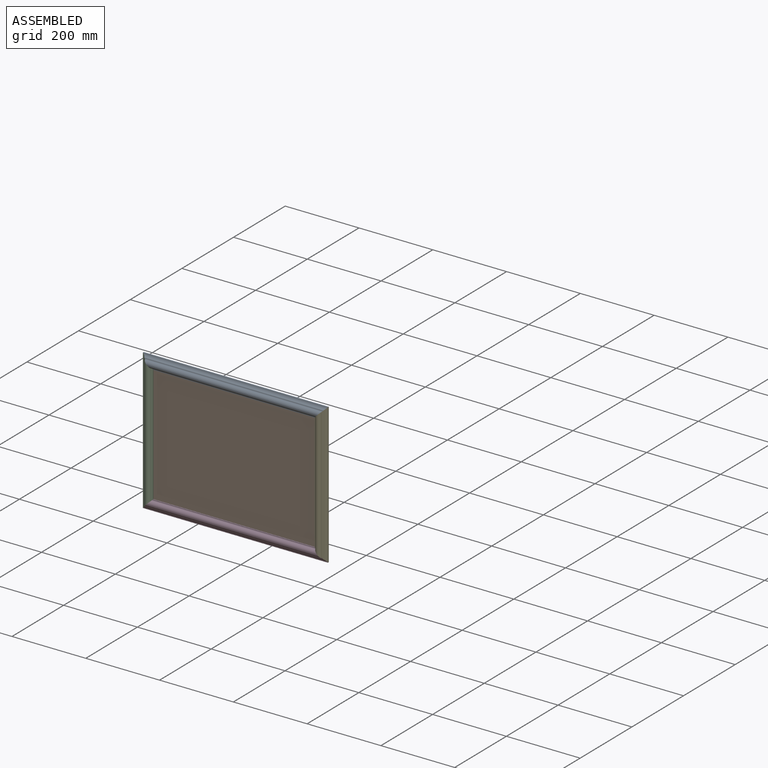
[diagram: assembled view]
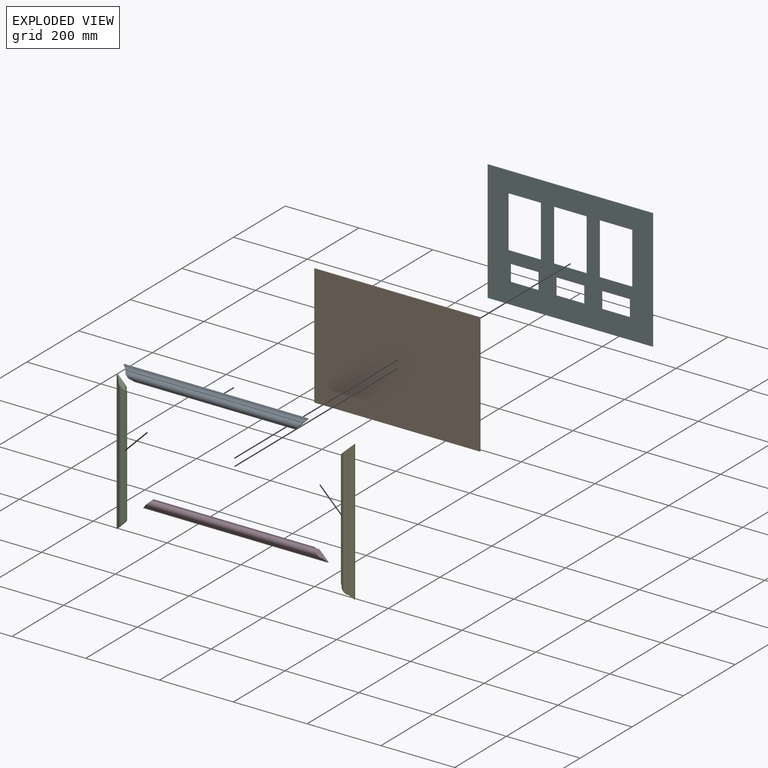
[diagram: exploded view]
GUIDED TOUR — MATED ASSEMBLY (Onshape document 936408cb544bb9868f3a3eb5, AutoMate assembly 936408cb544bb9868f3a3eb5_71fb5be47598a07a367c53dc_f4735473dea0fb01e8b9a4d9_default)

This assembly has 6 components, labeled P0..P5 below (a component is one placed occurrence of a part; the same part can appear more than once), held together by 5 mates. A mate is a constraint between two components; its type names the relative motion it leaves free:
  FASTENED — locks the two components together rigidly (no relative motion).
Axis/direction vectors are unit vectors and 'through' points are millimeter coordinates, both in the assembly's world frame.

MATES
  1. FASTENED "Fastened 2": P4 <-> P0, direction (-0.707, 0.000, 0.707) through (284.64, 303.07, 244.83) mm
  2. FASTENED "Fastened 5": P1 <-> P3, direction (0.000, -1.000, 0.000) through (275.14, 302.78, -93.28) mm
  3. FASTENED "Fastened 3": P4 <-> P3, direction (-0.707, 0.000, -0.707) through (284.64, 303.07, -102.78) mm
  4. FASTENED "Fastened 1": P0 <-> P2, direction (-0.707, 0.000, -0.707) through (-183.62, 303.07, 244.83) mm
  5. FASTENED "Fastened 6": P5 <-> P0, direction (0.000, -1.000, 0.000) through (-173.33, 304.78, 234.54) mm

ASSEMBLY ORDER
  1. P3 — the base component [order verified]
  2. P0 [order verified]
  3. P4 [order verified]
  4. P2 [order verified]
  5. P1 [order verified]
  6. P5 [order verified]
Order-tag legend:
  [order verified] — this step's position reverses a verified removal order: the component was checked to insert without passing through the ones already placed.

Of the 6 components, 2 carry the full construction recipe — the FeatureScript program that regenerates the part's solid from scratch; the rest are supplied as boundary geometry only.
Each toured component is shown spotlighted twice — in the assembled view, then in the exploded view, where a leader line traces a displaced component back to its assembled socket (saturated green if recipe-attached, orange if geometry-only; every other component desaturated gray) — followed by its recipe or geometry summary and the mates that hold it.
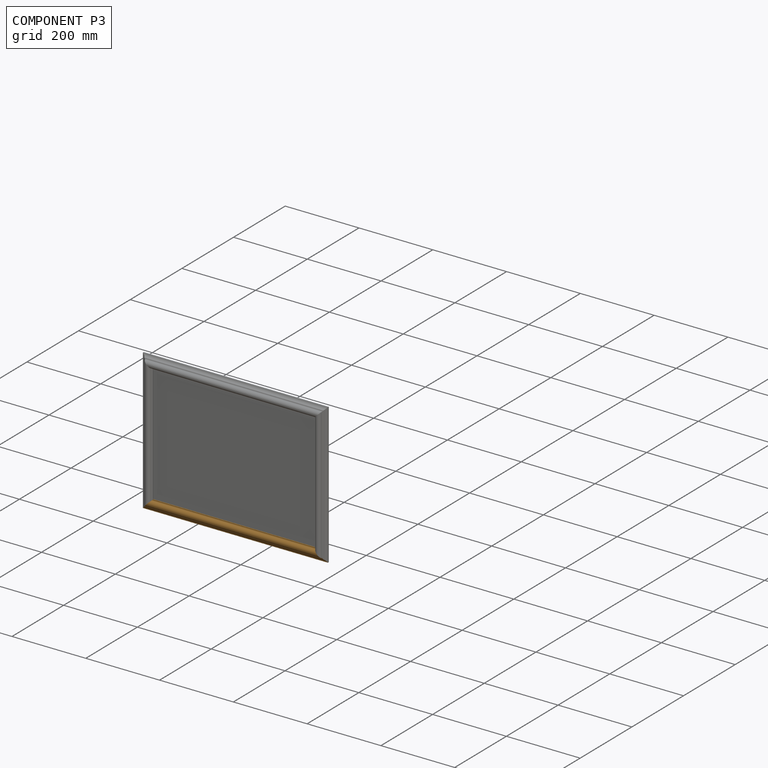
[diagram: component P3 — assembled]
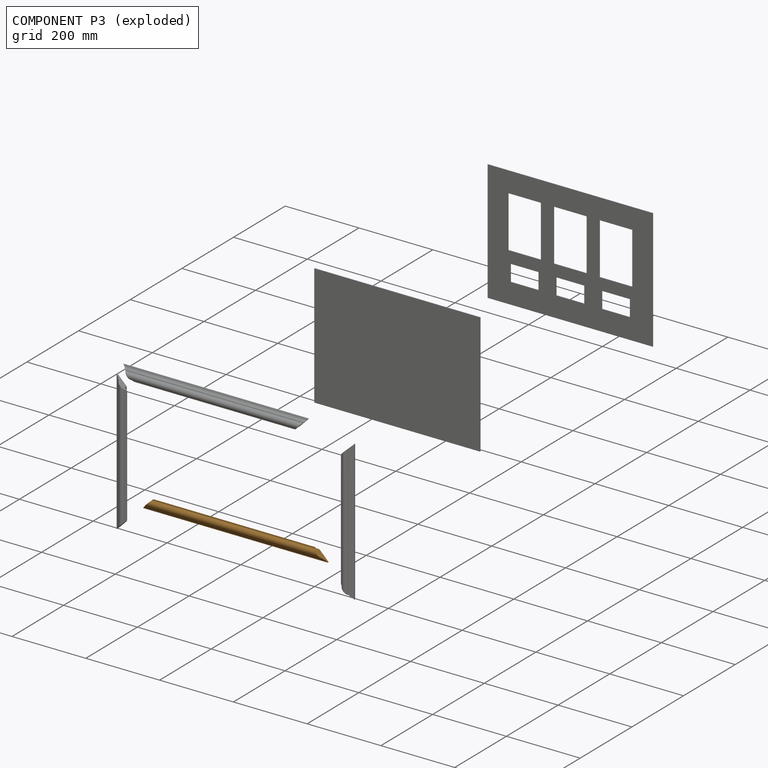
[diagram: component P3 — exploded]
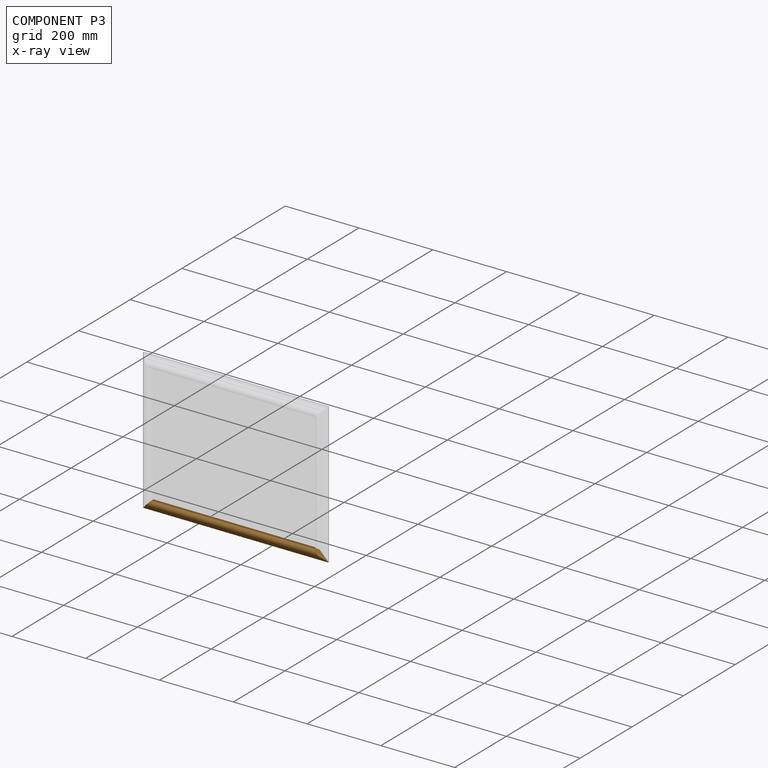
[diagram: component P3 — x-ray view]
COMPONENT P3 — geometry summary (no construction recipe available for this part):
  bounding box: 501.7 x 31.8 x 17.5 mm
  B-rep topology: 1 solid, 13 faces, 66 edges
  volume: 152653 mm^3 (55% of its bounding box)
  symmetry: mirror-symmetric across its z mid-plane
Held by: FASTENED mate "Fastened 5" to P1; FASTENED mate "Fastened 3" to P4.
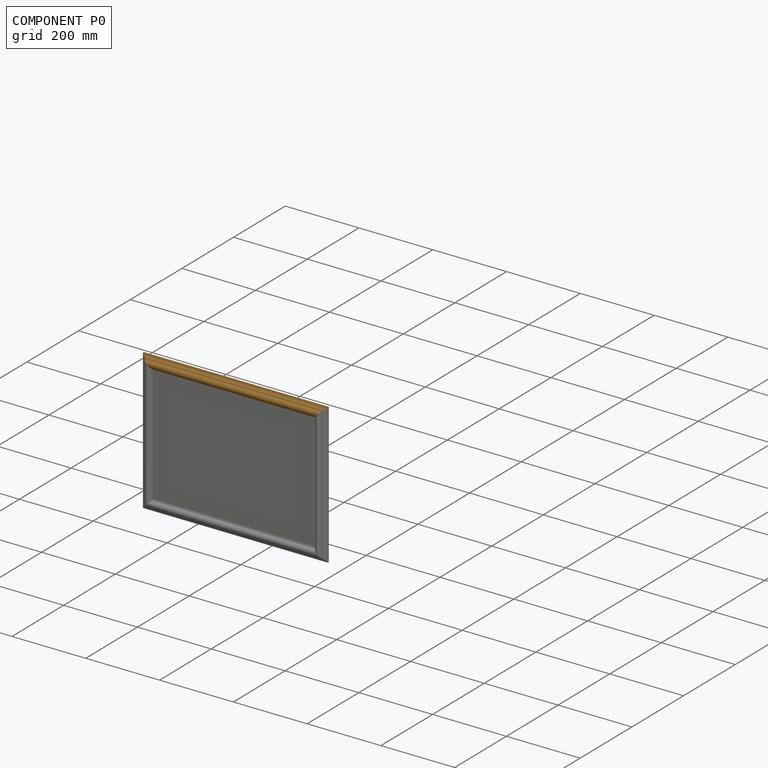
[diagram: component P0 — assembled]
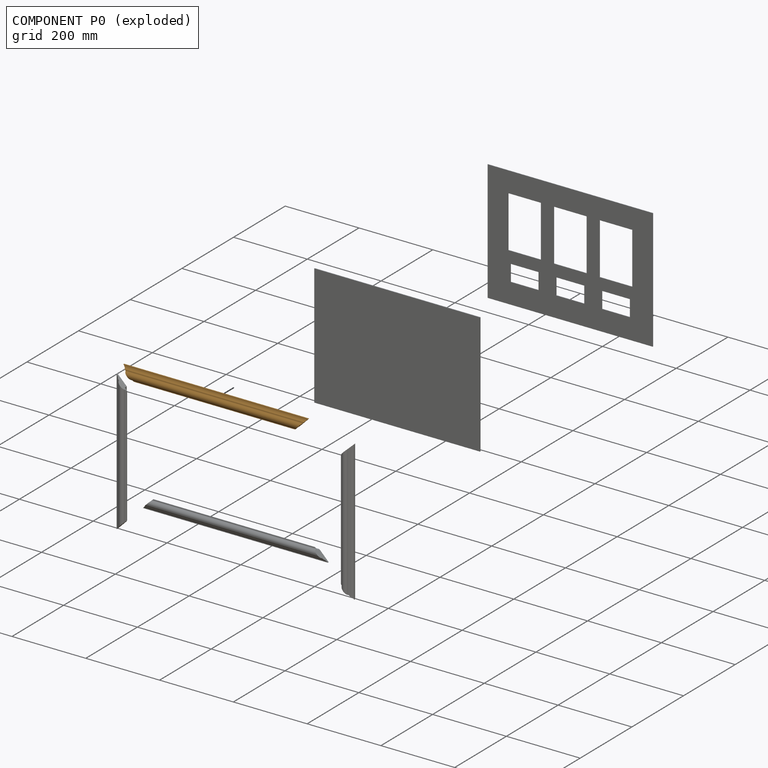
[diagram: component P0 — exploded]
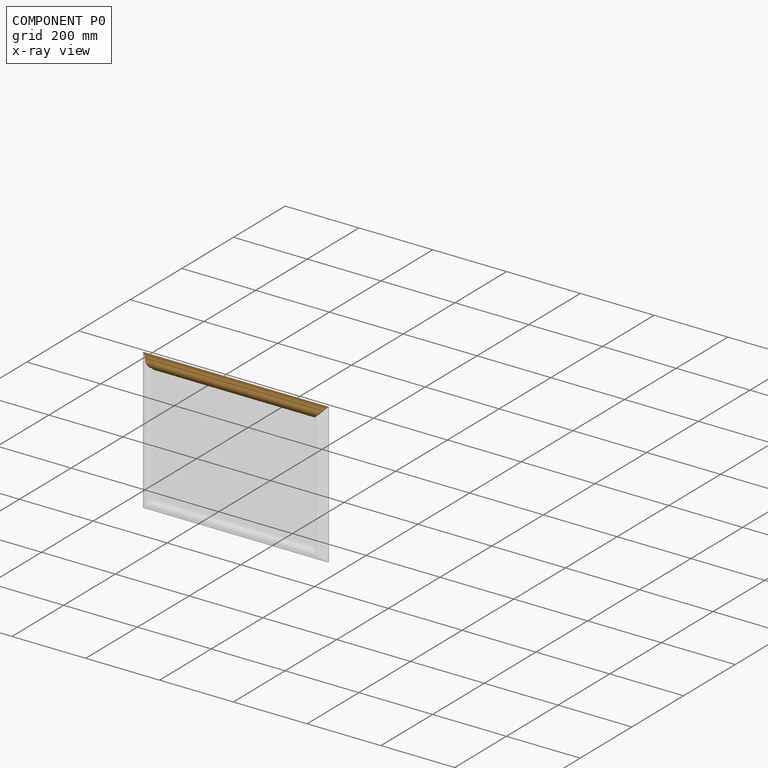
[diagram: component P0 — x-ray view]
COMPONENT P0 — geometry summary (no construction recipe available for this part):
  bounding box: 501.7 x 31.8 x 17.5 mm
  B-rep topology: 1 solid, 13 faces, 66 edges
  volume: 152653 mm^3 (55% of its bounding box)
  symmetry: mirror-symmetric across its z mid-plane
Held by: FASTENED mate "Fastened 2" to P4; FASTENED mate "Fastened 1" to P2; FASTENED mate "Fastened 6" to P5.
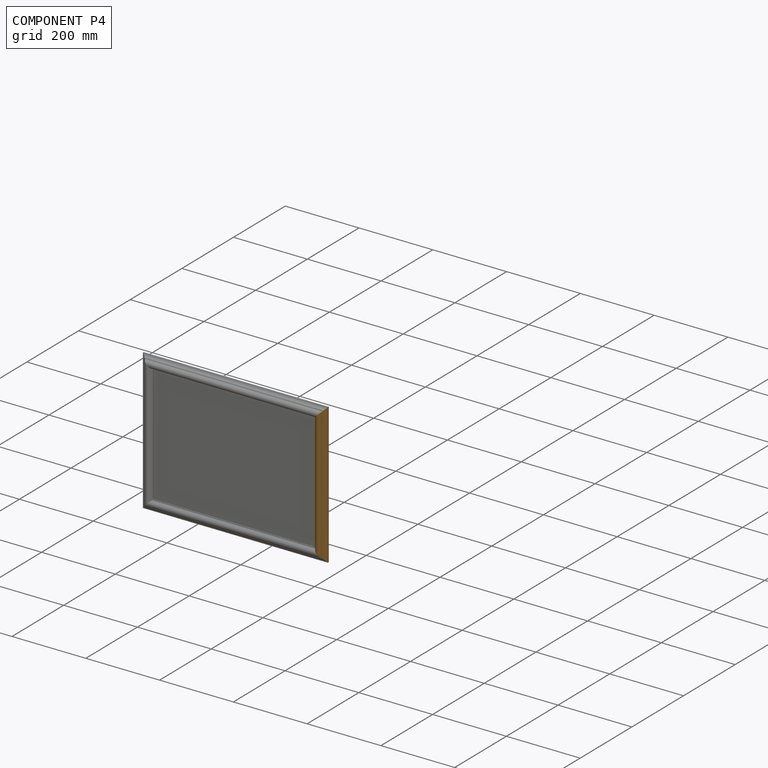
[diagram: component P4 — assembled]
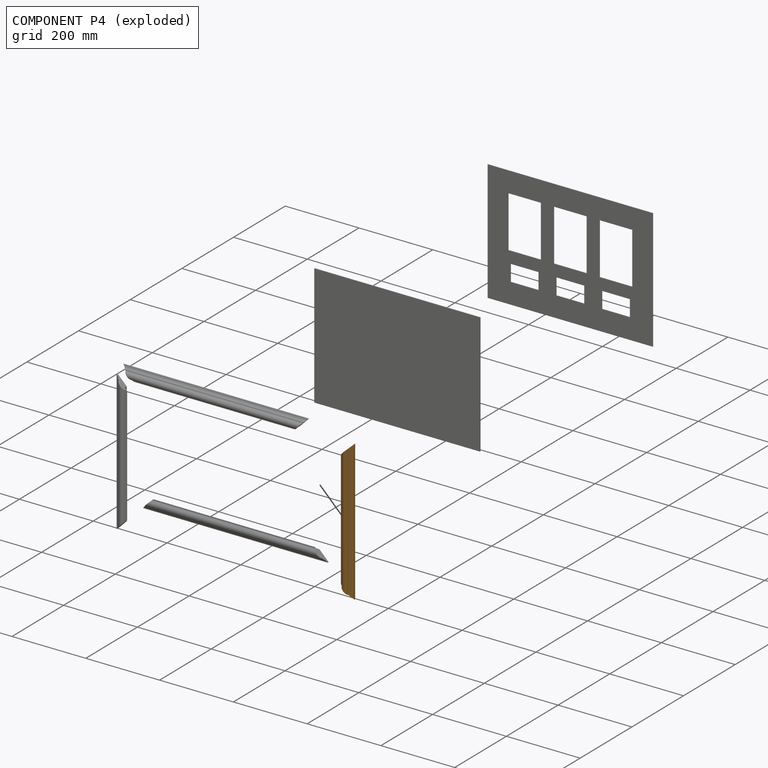
[diagram: component P4 — exploded]
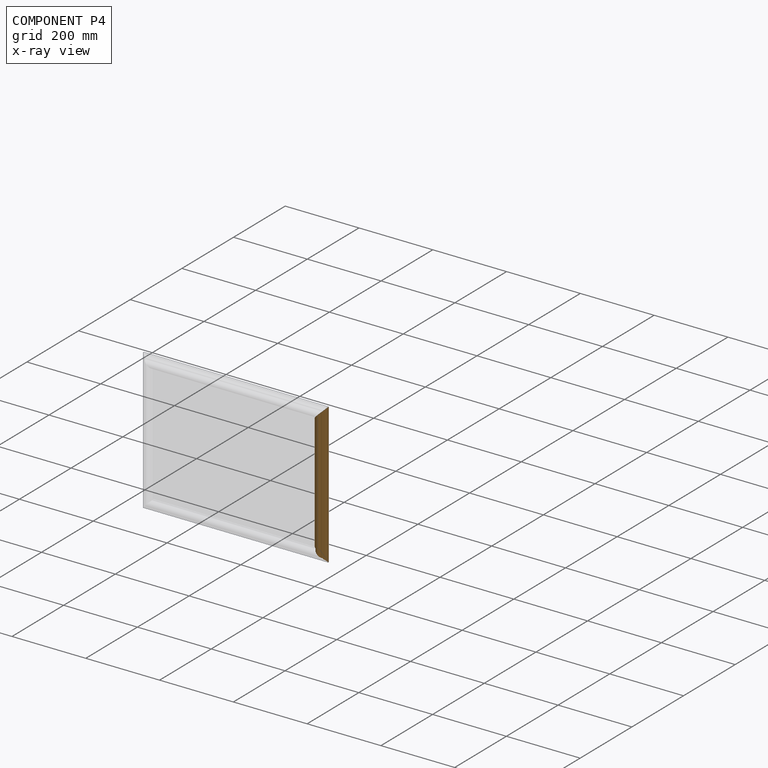
[diagram: component P4 — x-ray view]
COMPONENT P4 — geometry summary (no construction recipe available for this part):
  bounding box: 381.0 x 31.8 x 17.5 mm
  B-rep topology: 1 solid, 13 faces, 66 edges
  volume: 113321 mm^3 (54% of its bounding box)
  symmetry: mirror-symmetric across its z mid-plane
Held by: FASTENED mate "Fastened 2" to P0; FASTENED mate "Fastened 3" to P3.
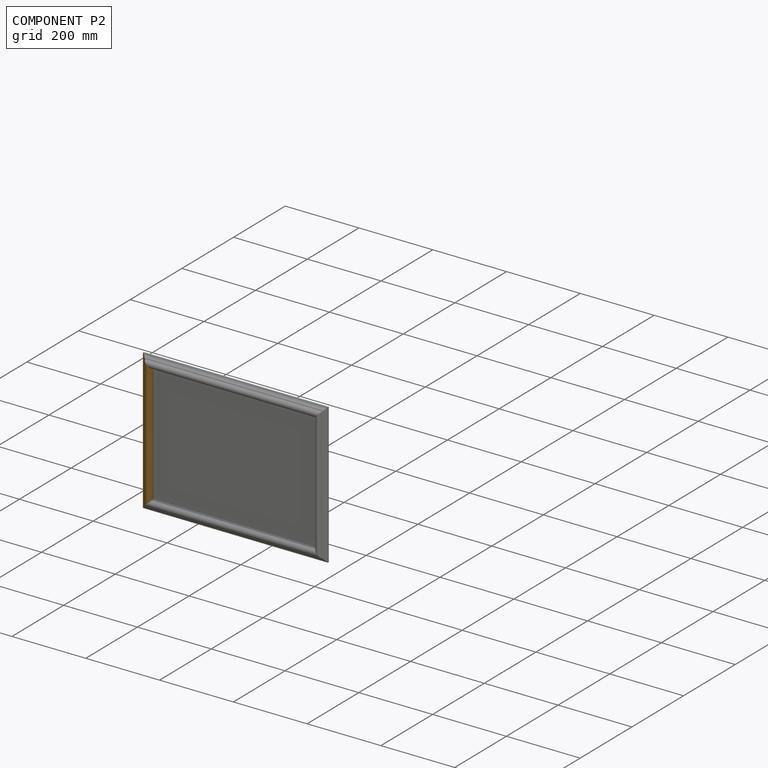
[diagram: component P2 — assembled]
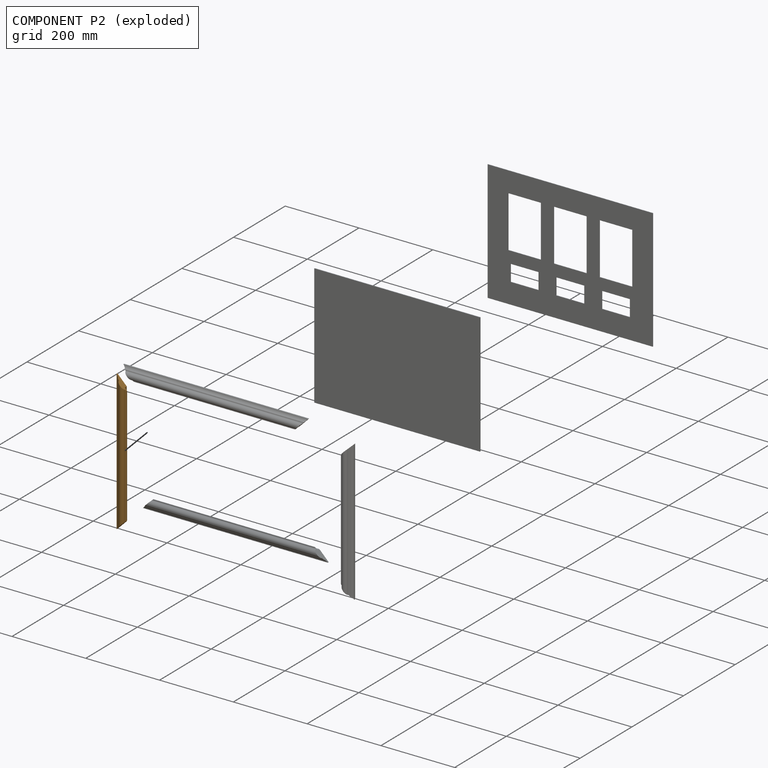
[diagram: component P2 — exploded]
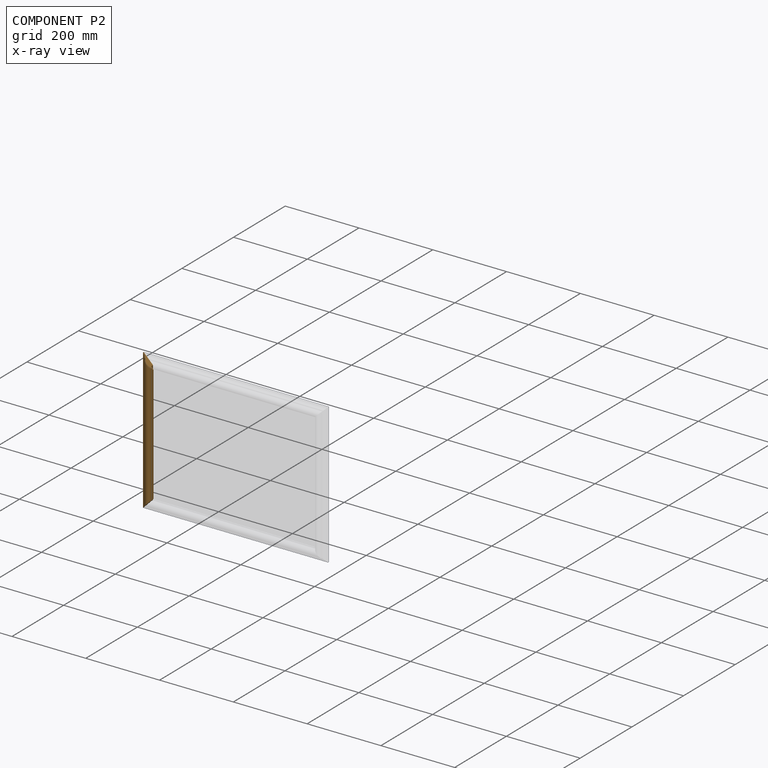
[diagram: component P2 — x-ray view]
COMPONENT P2 — geometry summary (no construction recipe available for this part):
  bounding box: 381.0 x 31.8 x 17.5 mm
  B-rep topology: 1 solid, 13 faces, 66 edges
  volume: 113321 mm^3 (54% of its bounding box)
  symmetry: mirror-symmetric across its z mid-plane
Held by: FASTENED mate "Fastened 1" to P0.
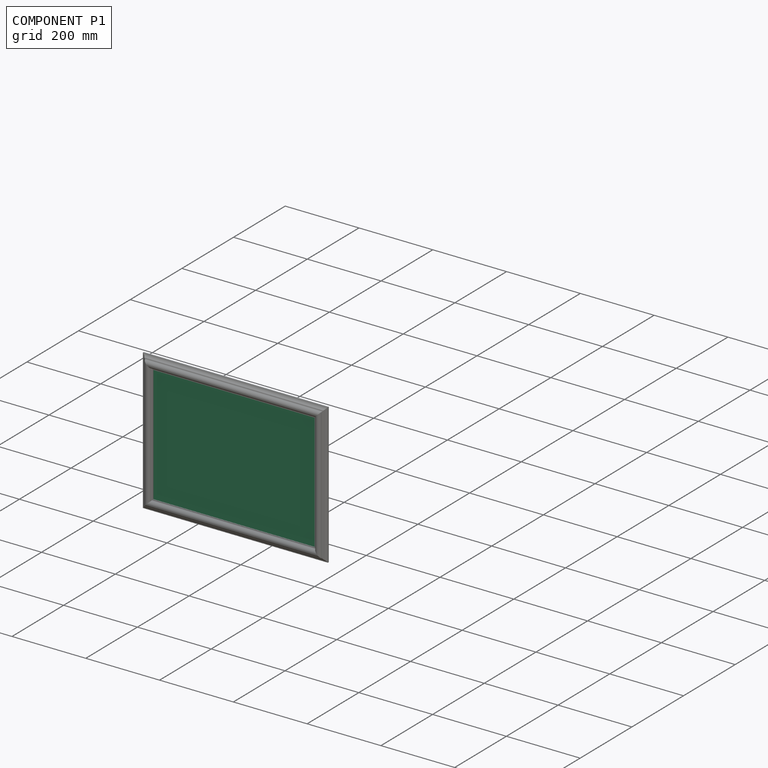
[diagram: component P1 — assembled]
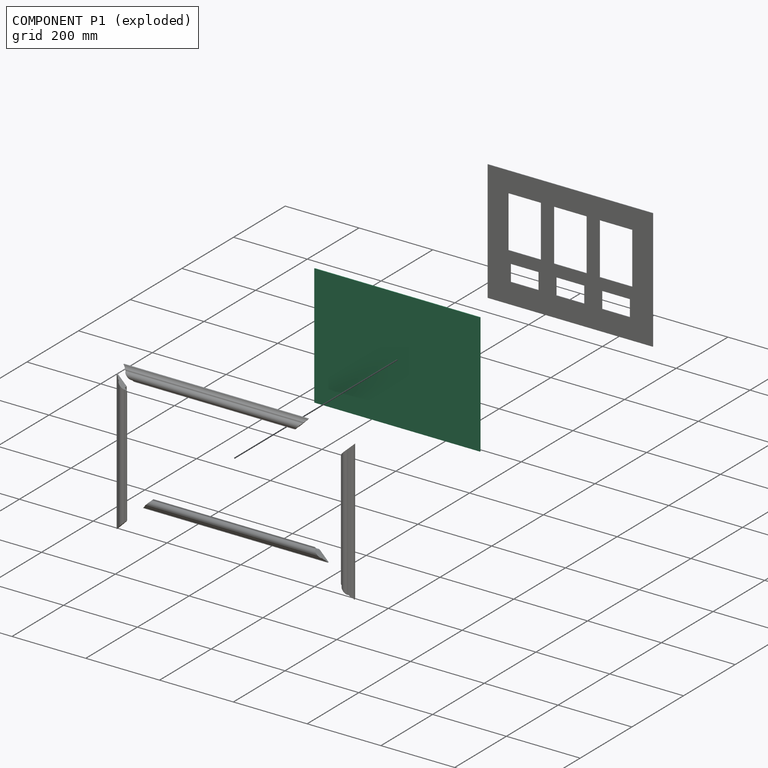
[diagram: component P1 — exploded]
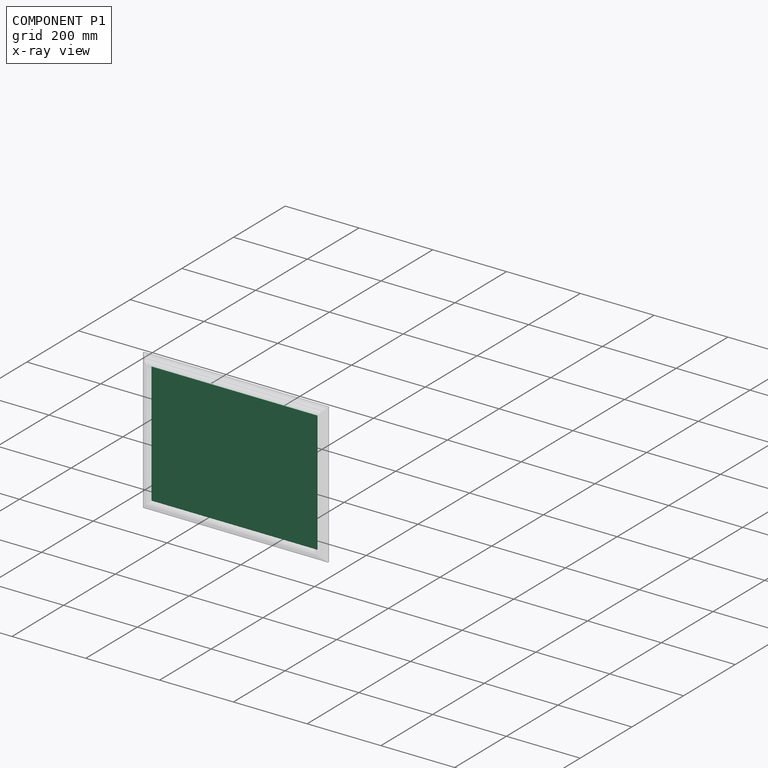
[diagram: component P1 — x-ray view]
COMPONENT P1 — recipe-attached (CADFS 00998980, mesh-verified: the recipe's output STEP matches this component's geometry to below the mesh-comparison resolution (tessellation chordal tolerance ~0.835 mm)).
Held by: FASTENED mate "Fastened 5" to P3.
Construction recipe (FeatureScript — the CAD program that rebuilds this solid; sketch coordinates are in the units given by the * unit suffixes, e.g. mm):

FeatureScript 1511;
import(path : "onshape/std/geometry.fs", version : "1511.0");
import(path : "onshape/std/common.fs", version : "1511.0");
const mm = millimeter;
const VERTEX = EntityType.VERTEX;
const EDGE = EntityType.EDGE;
const FACE = EntityType.FACE;
const BODY = EntityType.BODY;
function v(x, y){return vector(x, y);}
function OD(order){return orderDisambiguation(order);}
function OSD(set){return originalSetDisambiguation(set);}
function TD(topology){return topologyDisambiguation(topology);}
function TDD(query){return trueDependencyDisambiguation(query);}
function sQuery(a, b, c) {return sketchEntityQuery(a, b, c);}

annotation { "Feature Type Name" : "Feature", "Feature Type Description" : "" }
export const myFeature = defineFeature(function(context is Context, id is Id, definition is map)
    precondition{}
    {
        {
            var Q0;
            Q0=qCreatedBy(makeId("Front.planeOp"),FACE);
            var sketch = newSketch(context, id + "F0", { "sketchPlane" : qUnion([Q0])});
            skLineSegment(sketch, "E0.bottom", {"start": v(224.63, -164.3) * mm, "end": v(-224.63, -164.3) * mm});
            skLineSegment(sketch, "E0.top", {"start": v(224.63, 164.3) * mm, "end": v(-224.63, 164.3) * mm});
            skLineSegment(sketch, "E0.left", {"start": v(224.63, -164.3) * mm, "end": v(224.63, 164.3) * mm});
            skLineSegment(sketch, "E0.right", {"start": v(-224.63, -164.3) * mm, "end": v(-224.63, 164.3) * mm});
            skPoint(sketch, "E0.middle", {"position": v(0, 0) * mm});
            skSolve(sketch);
        }
        {
            var Q0;
            Q0=makeQuery(id+"F0.imprint","IMPRINT",FACE,{"disambiguationData":[TD([[makeQuery(id+"F0.imprint","IMPRINT",EDGE,{"derivedFrom":sQuery(id+"F0.wireOp",EDGE,"E0.bottom")}),-1.0]])]});
            extrude(context, id + "F1", {"entities" : qUnion([Q0]), "depth" : 2 * mm, "offsetDistance" : 25.4 * mm});
        }
    });
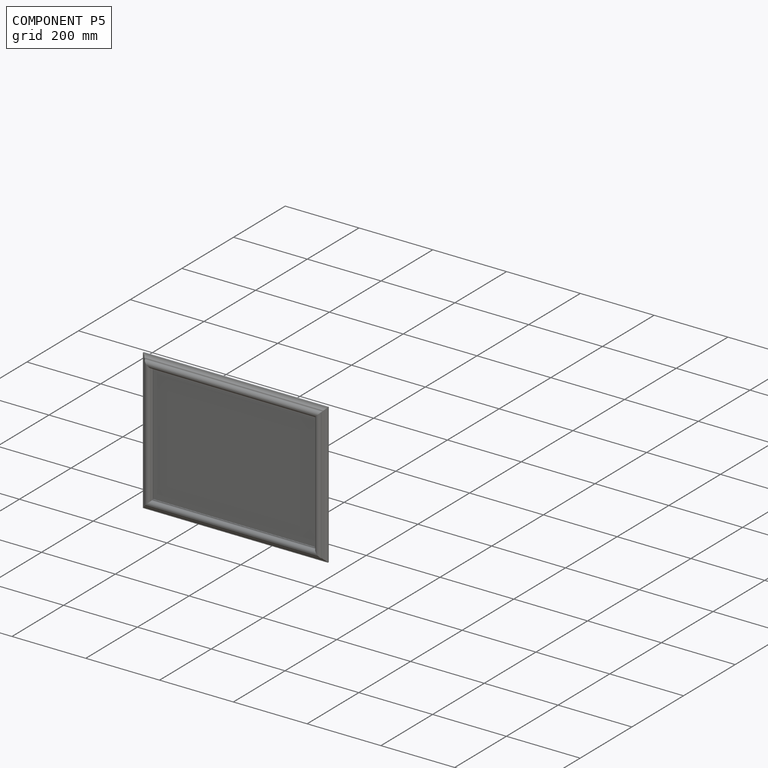
[diagram: component P5 — assembled]
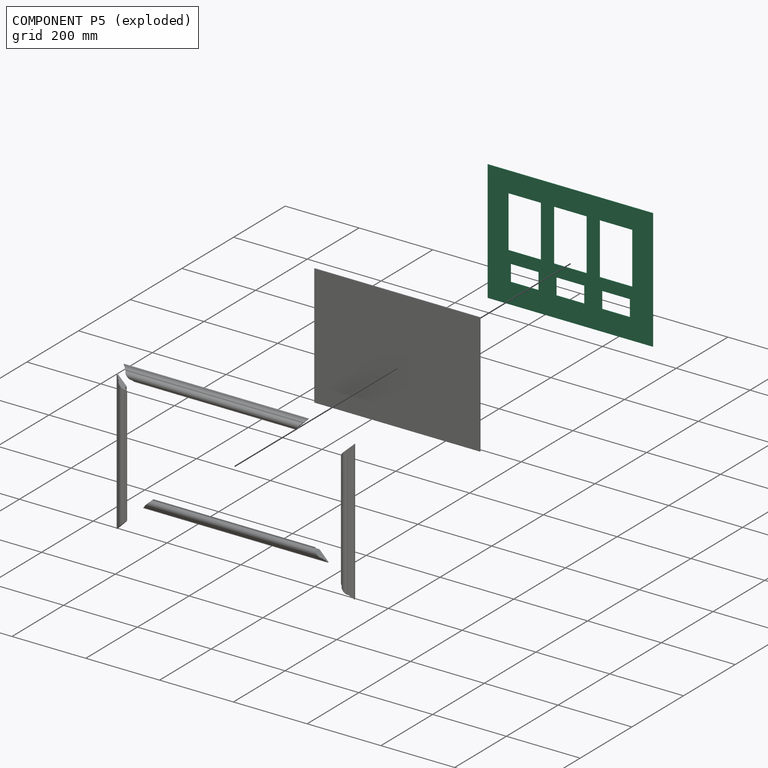
[diagram: component P5 — exploded]
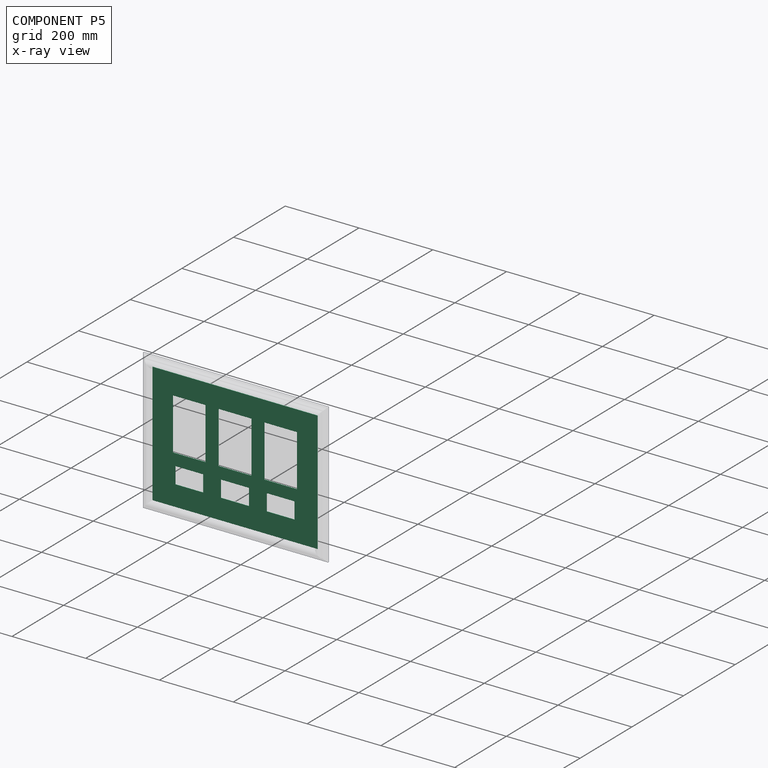
[diagram: component P5 — x-ray view]
COMPONENT P5 — recipe-attached (CADFS 00998982, mesh-verified: the recipe's output STEP matches this component's geometry to below the mesh-comparison resolution (tessellation chordal tolerance ~0.832 mm)).
Held by: FASTENED mate "Fastened 6" to P0.
Construction recipe (FeatureScript — the CAD program that rebuilds this solid; sketch coordinates are in the units given by the * unit suffixes, e.g. mm):

FeatureScript 1511;
import(path : "onshape/std/geometry.fs", version : "1511.0");
import(path : "onshape/std/common.fs", version : "1511.0");
const mm = millimeter;
const VERTEX = EntityType.VERTEX;
const EDGE = EntityType.EDGE;
const FACE = EntityType.FACE;
const BODY = EntityType.BODY;
function v(x, y){return vector(x, y);}
function OD(order){return orderDisambiguation(order);}
function OSD(set){return originalSetDisambiguation(set);}
function TD(topology){return topologyDisambiguation(topology);}
function TDD(query){return trueDependencyDisambiguation(query);}
function sQuery(a, b, c) {return sketchEntityQuery(a, b, c);}

annotation { "Feature Type Name" : "Feature", "Feature Type Description" : "" }
export const myFeature = defineFeature(function(context is Context, id is Id, definition is map)
    precondition{}
    {
        {
            var Q0;
            Q0=qCreatedBy(makeId("Front.planeOp"),FACE);
            var sketch = newSketch(context, id + "F0", { "sketchPlane" : qUnion([Q0])});
            skLineSegment(sketch, "E0.bottom", {"start": v(223.84, -163.51) * mm, "end": v(-223.84, -163.51) * mm});
            skLineSegment(sketch, "E0.top", {"start": v(223.84, 163.51) * mm, "end": v(-223.84, 163.51) * mm});
            skLineSegment(sketch, "E0.left", {"start": v(223.84, -163.51) * mm, "end": v(223.84, 163.51) * mm});
            skLineSegment(sketch, "E0.right", {"start": v(-223.84, -163.51) * mm, "end": v(-223.84, 163.51) * mm});
            skPoint(sketch, "E0.middle", {"position": v(0, 0) * mm});
            skLineSegment(sketch, "E1.bottom", {"start": v(-168.28, 107.95) * mm, "end": v(-79.38, 107.95) * mm});
            skLineSegment(sketch, "E1.top", {"start": v(-168.28, -31.75) * mm, "end": v(-79.38, -31.75) * mm});
            skLineSegment(sketch, "E1.left", {"start": v(-168.28, 107.95) * mm, "end": v(-168.28, -31.75) * mm});
            skLineSegment(sketch, "E1.right", {"start": v(-79.38, 107.95) * mm, "end": v(-79.38, -31.75) * mm});
            skLineSegment(sketch, "E2.MirrorCS", {"start": v(168.28, -31.75) * mm, "end": v(79.38, -31.75) * mm});
            skLineSegment(sketch, "E3.bottom", {"start": v(-44.45, -31.75) * mm, "end": v(44.45, -31.75) * mm});
            skLineSegment(sketch, "E3.top", {"start": v(-44.45, 107.95) * mm, "end": v(44.45, 107.95) * mm});
            skLineSegment(sketch, "E3.left", {"start": v(-44.45, -31.75) * mm, "end": v(-44.45, 107.95) * mm});
            skLineSegment(sketch, "E3.right", {"start": v(44.45, -31.75) * mm, "end": v(44.45, 107.95) * mm});
            skLineSegment(sketch, "E4.bottom", {"start": v(-85.73, -63.5) * mm, "end": v(-161.93, -63.5) * mm});
            skLineSegment(sketch, "E4.top", {"start": v(-85.73, -107.95) * mm, "end": v(-161.93, -107.95) * mm});
            skLineSegment(sketch, "E4.left", {"start": v(-85.73, -63.5) * mm, "end": v(-85.73, -107.95) * mm});
            skLineSegment(sketch, "E4.right", {"start": v(-161.93, -63.5) * mm, "end": v(-161.93, -107.95) * mm});
            skPoint(sketch, "E4.middle", {"position": v(-123.83, -85.73) * mm});
            skPoint(sketch, "E4.middle.positionSnap0", {"position": v(-123.83, -31.75) * mm});
            skPoint(sketch, "E4.centerSnap0", {"position": v(-123.83, -31.75) * mm});
            skLineSegment(sketch, "E5.MirrorCS", {"start": v(85.73, -63.5) * mm, "end": v(85.73, -107.95) * mm});
            skLineSegment(sketch, "E6.MirrorCS", {"start": v(85.73, -63.5) * mm, "end": v(161.93, -63.5) * mm});
            skLineSegment(sketch, "E7.MirrorCS", {"start": v(161.93, -63.5) * mm, "end": v(161.93, -107.95) * mm});
            skLineSegment(sketch, "E8.MirrorCS", {"start": v(85.73, -107.95) * mm, "end": v(161.93, -107.95) * mm});
            skPoint(sketch, "E9.middle", {"position": v(0, -85.73) * mm});
            skLineSegment(sketch, "E10", {"start": v(-260.01, 107.95) * mm, "end": v(263.4, 107.95) * mm, "construction": true});
            skLineSegment(sketch, "E11", {"start": v(79.38, -31.75) * mm, "end": v(79.38, 107.95) * mm});
            skLineSegment(sketch, "E12", {"start": v(168.28, -31.75) * mm, "end": v(168.28, 107.95) * mm});
            skPoint(sketch, "E12.endSnap0", {"position": v(1.7, 107.95) * mm});
            skLineSegment(sketch, "E13", {"start": v(168.28, 107.95) * mm, "end": v(79.38, 107.95) * mm});
            skLineSegment(sketch, "E14.bottom", {"start": v(-38.1, -107.95) * mm, "end": v(38.1, -107.95) * mm});
            skLineSegment(sketch, "E14.top", {"start": v(-38.1, -63.5) * mm, "end": v(38.1, -63.5) * mm});
            skLineSegment(sketch, "E14.left", {"start": v(-38.1, -107.95) * mm, "end": v(-38.1, -63.5) * mm});
            skLineSegment(sketch, "E14.right", {"start": v(38.1, -107.95) * mm, "end": v(38.1, -63.5) * mm});
            skSolve(sketch);
        }
        {
            var Q0;
            Q0=makeQuery(id+"F0.imprint","IMPRINT",FACE,{"disambiguationData":[TD([[makeQuery(id+"F0.imprint","IMPRINT",EDGE,{"derivedFrom":sQuery(id+"F0.wireOp",EDGE,"E0.bottom")}),-1.0]])]});
            extrude(context, id + "F1", {"entities" : qUnion([Q0]), "depth" : 1.59 * mm, "offsetDistance" : 25.4 * mm});
        }
    });
PROVENANCE & LICENSES
Assembly (occurrences, transforms, mates, per-part STEP geometry): AutoMate dataset, Zenodo record 7776208, CC0.
Construction recipes: CADFS (HuggingFace VladPyatov/CADFS, CC-BY-4.0, layered over the ABC dataset), FeatureScript reconstruction programs keyed by ABC model id.
Join: ABC meta listings map ABC model id -> Onshape documentId; within a shared document, parts are matched by geometric signature (bounding-box dims + volume at 0.1% relative tolerance, exact B-rep face/solid counts).
Verification: 2 of this assembly's 6 components carry a recipe attachment, and every attachment is mesh-verified: the CADFS STEP and the AutoMate member STEP were compared as meshes in their shared local frame (symmetric sampled-point-to-mesh distance); worst across the 2 attachments: below the mesh-comparison resolution (tessellation chordal tolerance ~0.835 mm) on a 557 mm part.
Renders: orthographic iso camera (az 35 / el 25); the floor grid conveys scale (grid pitch printed in each image; no ruler). In the exploded view each component is displaced by its stored offset vector: the offsets alone carry the explosion direction (mate normal/axis signs are not orientation cues and do not encode it), and separation distances are assigned per mate-chain, not proportionally to assembly-order depth.
